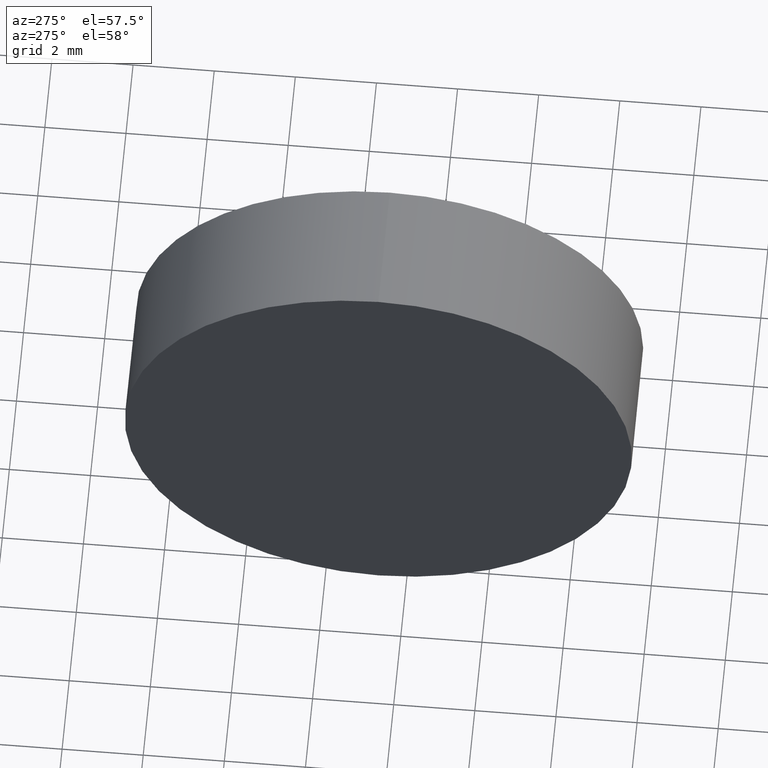
[diagram: clean part render]
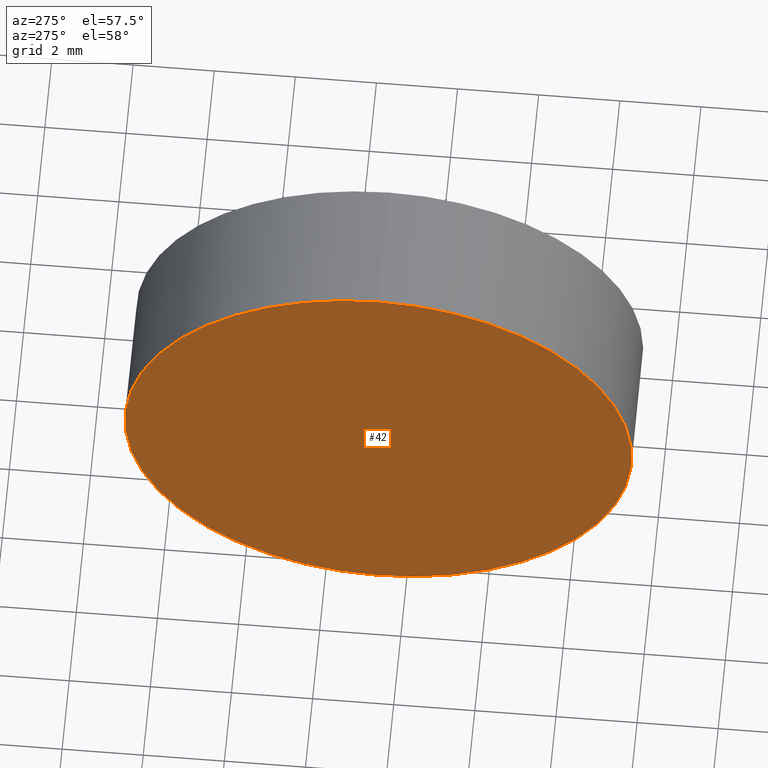
[diagram: same view with one face highlighted and labeled with its STEP entity id]
A machine part, auxiliary view. The second image highlights one B-rep face of the part: STEP entity #42.
In plain terms, the highlighted planar face has unit normal (1, 0, 0).
Its self-contained STEP definition (entity closure, byte-faithful):
#4 = FACE_OUTER_BOUND ( 'NONE', #48, .T. ) ;
#12 = DIRECTION ( 'NONE',  ( 1.000000000000000000, 0.0000000000000000000, 0.0000000000000000000 ) ) ;
#20 = DIRECTION ( 'NONE',  ( 0.0000000000000000000, 0.0000000000000000000, 1.000000000000000000 ) ) ;
#31 = AXIS2_PLACEMENT_3D ( 'NONE', #140, #183, #20 ) ;
#34 = VERTEX_POINT ( 'NONE', #145 ) ;
#35 = CARTESIAN_POINT ( 'NONE',  ( 57.54632776745975800, 34.68901056168621700, 0.0000000000000000000 ) ) ;
#37 = CIRCLE ( 'NONE', #40, 6.249999999999998200 ) ;
#40 = AXIS2_PLACEMENT_3D ( 'NONE', #35, #68, #94 ) ;
#42 = ADVANCED_FACE ( 'NONE', ( #4 ), #99, .F. ) ;
#47 = EDGE_CURVE ( 'NONE', #34, #141, #37, .T. ) ;
#48 = EDGE_LOOP ( 'NONE', ( #136, #88 ) ) ;
#54 = EDGE_CURVE ( 'NONE', #141, #34, #150, .T. ) ;
#68 = DIRECTION ( 'NONE',  ( -1.000000000000000000, -0.0000000000000000000, -0.0000000000000000000 ) ) ;
#85 = CARTESIAN_POINT ( 'NONE',  ( 57.54632776745975800, 34.68901056168621700, -6.249999999999998200 ) ) ;
#88 = ORIENTED_EDGE ( 'NONE', *, *, #54, .T. ) ;
#94 = DIRECTION ( 'NONE',  ( 0.0000000000000000000, 0.0000000000000000000, 1.000000000000000000 ) ) ;
#99 = PLANE ( 'NONE',  #135 ) ;
#129 = DIRECTION ( 'NONE',  ( 0.0000000000000000000, 0.0000000000000000000, -1.000000000000000000 ) ) ;
#135 = AXIS2_PLACEMENT_3D ( 'NONE', #156, #12, #129 ) ;
#136 = ORIENTED_EDGE ( 'NONE', *, *, #47, .T. ) ;
#140 = CARTESIAN_POINT ( 'NONE',  ( 57.54632776745975800, 34.68901056168621700, 0.0000000000000000000 ) ) ;
#141 = VERTEX_POINT ( 'NONE', #85 ) ;
#145 = CARTESIAN_POINT ( 'NONE',  ( 57.54632776745975800, 34.68901056168621700, 6.249999999999998200 ) ) ;
#150 = CIRCLE ( 'NONE', #31, 6.249999999999998200 ) ;
#156 = CARTESIAN_POINT ( 'NONE',  ( 57.54632776745975800, 34.68901056168621700, 0.0000000000000000000 ) ) ;
#183 = DIRECTION ( 'NONE',  ( -1.000000000000000000, -0.0000000000000000000, -0.0000000000000000000 ) ) ;